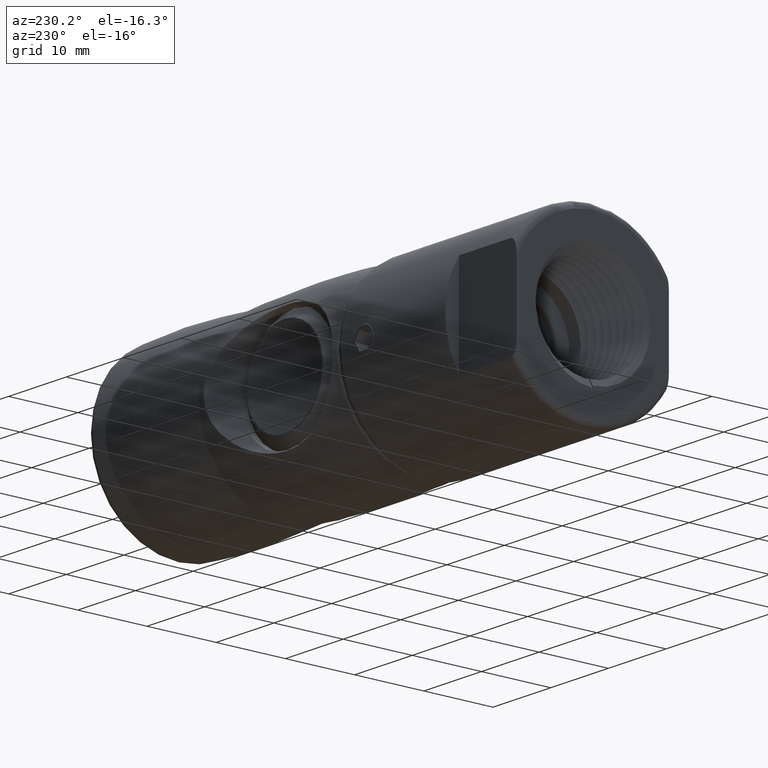
[diagram: clean part render]
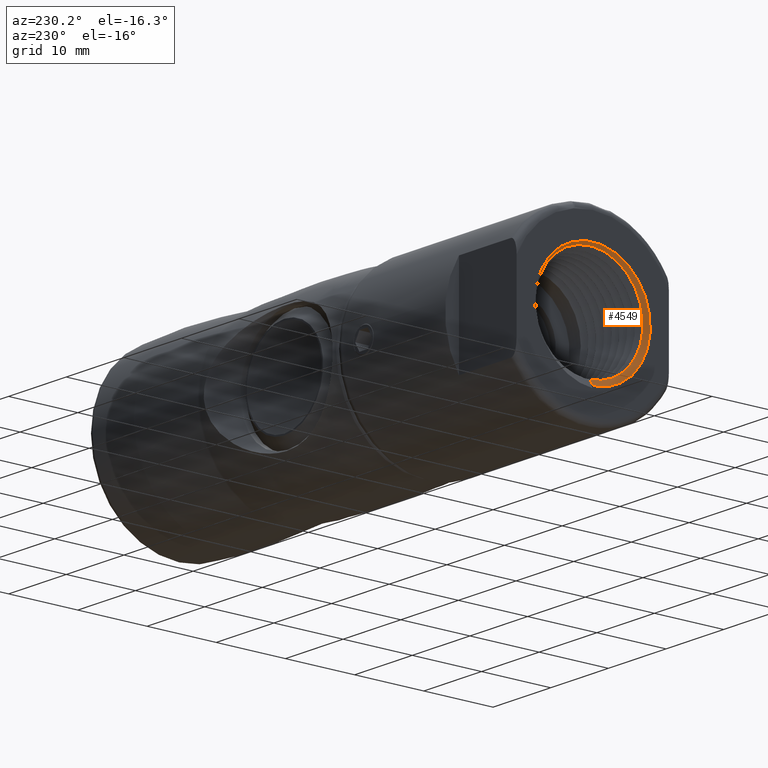
[diagram: same view with one face highlighted and labeled with its STEP entity id]
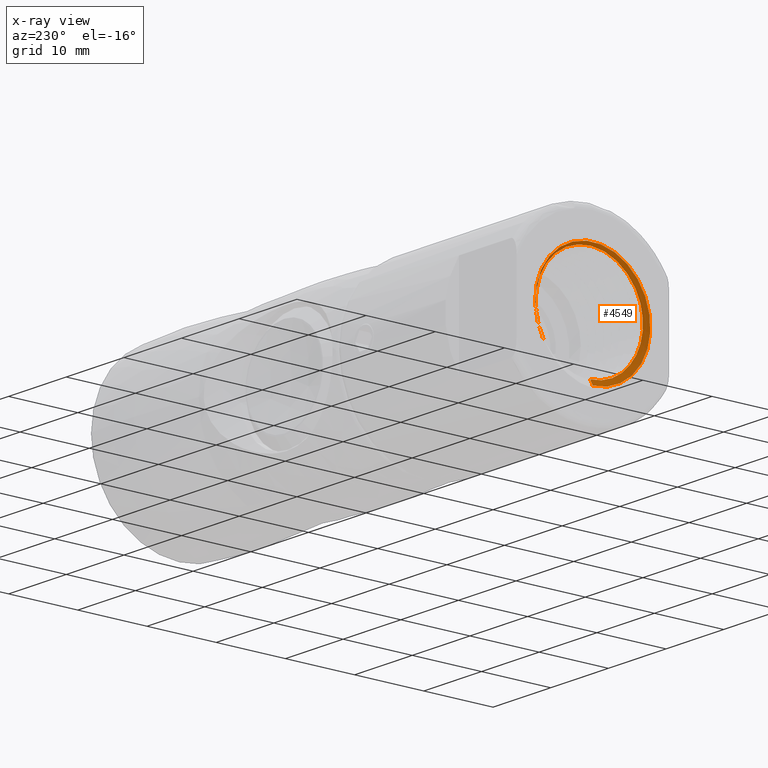
[diagram: x-ray of the same camera — body ghosted, the highlighted face saturated]
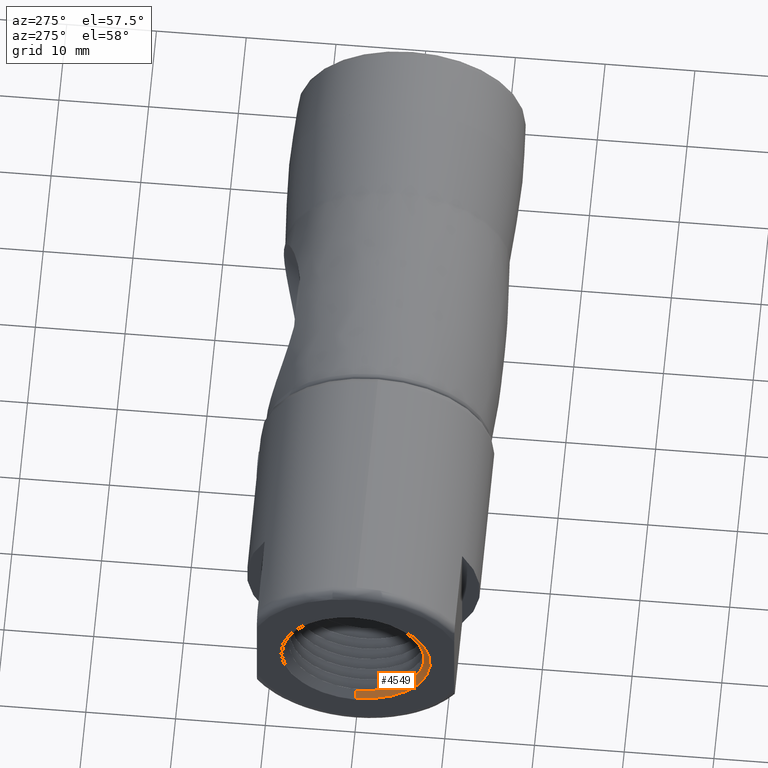
[diagram: same view with one face highlighted and labeled with its STEP entity id]
A machine part, auxiliary view. The second image highlights one B-rep face of the part: STEP entity #4549.
The next image is the same camera in x-ray: the body ghosted, the highlighted face saturated — about 0% of this face is hidden behind the body in this view.
A second angle (auxiliary view) of the same face is appended — the face is thin or edge-on in the first view.
In plain terms, the highlighted conical surface has half-angle 60 deg.
Its self-contained STEP definition (entity closure, byte-faithful):
#271=CONICAL_SURFACE('',#5160,8.32499999999925,1.04719755119661);
#432=B_SPLINE_CURVE_WITH_KNOTS('',3,(#16529,#16530,#16531,#16532,#16533,
#16534,#16535,#16536,#16537,#16538,#16539,#16540,#16541,#16542,#16543,#16544,
#16545,#16546,#16547,#16548,#16549,#16550,#16551,#16552,#16553,#16554,#16555,
#16556,#16557,#16558,#16559,#16560,#16561,#16562),.UNSPECIFIED.,.F.,.F.,
(4,2,2,2,2,2,2,2,2,2,2,2,2,2,2,2,4),(-3.69162760644924,-3.39256319397044,
-3.09960596431941,-2.93412231200765,-2.77306659545551,-2.45831007307439,
-2.29755317516723,-2.14006261281001,-1.83205675106253,-1.67250871242781,
-1.37612860784303,-1.22344855431198,-0.914910751152504,-0.615300474588061,
-0.313536600940725,-0.157591120924952,-1.00000001790335E-6),
 .UNSPECIFIED.);
#616=LINE('',#16526,#802);
#802=VECTOR('',#6435,10.);
#1177=FACE_OUTER_BOUND('',#1471,.T.);
#1471=EDGE_LOOP('',(#4214,#4215,#4216,#4217));
#1760=CIRCLE('',#5110,7.4750000000019);
#1790=CIRCLE('',#5161,8.32499999999925);
#2222=VERTEX_POINT('',#15690);
#2223=VERTEX_POINT('',#15692);
#2278=VERTEX_POINT('',#16525);
#2279=VERTEX_POINT('',#16527);
#2858=EDGE_CURVE('',#2222,#2223,#1760,.T.);
#2935=EDGE_CURVE('',#2278,#2222,#616,.T.);
#2936=EDGE_CURVE('',#2278,#2279,#1790,.T.);
#2937=EDGE_CURVE('',#2279,#2223,#432,.T.);
#4214=ORIENTED_EDGE('',*,*,#2935,.F.);
#4215=ORIENTED_EDGE('',*,*,#2936,.T.);
#4216=ORIENTED_EDGE('',*,*,#2937,.T.);
#4217=ORIENTED_EDGE('',*,*,#2858,.F.);
#4549=ADVANCED_FACE('',(#1177),#271,.F.);
#5110=AXIS2_PLACEMENT_3D('',#15693,#6315,#6316);
#5160=AXIS2_PLACEMENT_3D('',#16524,#6433,#6434);
#5161=AXIS2_PLACEMENT_3D('',#16528,#6436,#6437);
#6315=DIRECTION('center_axis',(-1.,-8.10829853279917E-18,4.14709251126948E-18));
#6316=DIRECTION('ref_axis',(-4.14709251126948E-18,-5.55111512312578E-17,
-1.));
#6433=DIRECTION('center_axis',(-1.,-8.10829853279917E-18,4.14709251126948E-18));
#6434=DIRECTION('ref_axis',(6.95820508622098E-18,-0.386425942628657,0.922320438277042));
#6435=DIRECTION('',(0.499948631483538,-0.013582529507021,0.865948543950464));
#6436=DIRECTION('center_axis',(-1.,-8.10829853279917E-18,4.14709251126948E-18));
#6437=DIRECTION('ref_axis',(-4.14709251126948E-18,-5.55111512312578E-17,
-1.));
#15690=CARTESIAN_POINT('',(-18.8092522711823,-0.0133325607618572,-7.4749881098803));
#15692=CARTESIAN_POINT('',(-18.8092522711823,-5.8102164284924,-4.70287253219832));
#15693=CARTESIAN_POINT('Origin',(-18.8092522711823,-2.31161528361694E-16,
1.18230506595746E-16));
#16524=CARTESIAN_POINT('Origin',(-19.2999999999919,-2.35140657451175E-16,
1.20265682826815E-16));
#16525=CARTESIAN_POINT('',(-19.2999999999919,-2.4153126224192E-15,-8.32499999999925));
#16526=CARTESIAN_POINT('',(-19.2999999999919,-2.4153126224192E-15,-8.32499999999925));
#16527=CARTESIAN_POINT('',(-19.2999999999919,5.93420227036804,-5.83873859787765));
#16528=CARTESIAN_POINT('Origin',(-19.2999999999919,-2.35140657451175E-16,
1.20265682826815E-16));
#16529=CARTESIAN_POINT('Ctrl Pts',(-19.2999999999919,5.93420227036805,-5.83873859787765));
#16530=CARTESIAN_POINT('Ctrl Pts',(-19.2881889136879,6.59976875861149,-5.13312145735482));
#16531=CARTESIAN_POINT('Ctrl Pts',(-19.2755883561606,7.13573391910914,-4.31567707333792));
#16532=CARTESIAN_POINT('Ctrl Pts',(-19.2501803291758,7.89137241032718,-2.5504744810282));
#16533=CARTESIAN_POINT('Ctrl Pts',(-19.2375721826922,8.11162411540846,-1.61892757402717));
#16534=CARTESIAN_POINT('Ctrl Pts',(-19.2186748381145,8.20060681580514,-0.134693974884291));
#16535=CARTESIAN_POINT('Ctrl Pts',(-19.2121198804952,8.18054317738167,0.405642265774004));
#16536=CARTESIAN_POINT('Ctrl Pts',(-19.1983888933099,8.03416904501537,1.4609578991478));
#16537=CARTESIAN_POINT('Ctrl Pts',(-19.1914312557947,7.91153887237701,1.97320697807807));
#16538=CARTESIAN_POINT('Ctrl Pts',(-19.1706078145972,7.40535237617117,3.44081444126632));
#16539=CARTESIAN_POINT('Ctrl Pts',(-19.1566711014137,6.88905264538967,4.33923214745761));
#16540=CARTESIAN_POINT('Ctrl Pts',(-19.1365093193236,5.87651141062565,5.51475727652093));
#16541=CARTESIAN_POINT('Ctrl Pts',(-19.1299878104213,5.49412134797056,5.88070260590462));
#16542=CARTESIAN_POINT('Ctrl Pts',(-19.1163436969054,4.67044320983177,6.52416924746311));
#16543=CARTESIAN_POINT('Ctrl Pts',(-19.1093950409286,4.23277237263709,6.80212155208733));
#16544=CARTESIAN_POINT('Ctrl Pts',(-19.0885546618275,2.86863773151631,7.49236924349984));
#16545=CARTESIAN_POINT('Ctrl Pts',(-19.0745604185698,1.88721031698522,7.7728966255485));
#16546=CARTESIAN_POINT('Ctrl Pts',(-19.0541572710177,0.357615844730641,
7.90845849293073));
#16547=CARTESIAN_POINT('Ctrl Pts',(-19.04751470276,-0.17152773481733,7.90342093633623));
#16548=CARTESIAN_POINT('Ctrl Pts',(-19.0275574998905,-1.66914458342571,
7.73592348447308));
#16549=CARTESIAN_POINT('Ctrl Pts',(-19.0138771073267,-2.61357835444709,
7.44500408924284));
#16550=CARTESIAN_POINT('Ctrl Pts',(-18.9931291631011,-3.92577352742474,
6.75138569371464));
#16551=CARTESIAN_POINT('Ctrl Pts',(-18.9861209099129,-4.34803252545981,
6.47290298885684));
#16552=CARTESIAN_POINT('Ctrl Pts',(-18.965393391555,-5.53358362252175,5.51459433250953));
#16553=CARTESIAN_POINT('Ctrl Pts',(-18.952306099431,-6.19523275558075,4.72315282615378));
#16554=CARTESIAN_POINT('Ctrl Pts',(-18.9238702384127,-7.15430440079594,
2.94736269807896));
#16555=CARTESIAN_POINT('Ctrl Pts',(-18.9095718927815,-7.45222777053434,
1.98893983562639));
#16556=CARTESIAN_POINT('Ctrl Pts',(-18.881901794218,-7.66648299648467,0.00471811750331548));
#16557=CARTESIAN_POINT('Ctrl Pts',(-18.8688133751906,-7.57825149351663,
-1.00479722064703));
#16558=CARTESIAN_POINT('Ctrl Pts',(-18.8469152127456,-7.14407441754718,
-2.46724948619691));
#16559=CARTESIAN_POINT('Ctrl Pts',(-18.839353450712,-6.94492818073754,-2.94885472639525));
#16560=CARTESIAN_POINT('Ctrl Pts',(-18.8241878233049,-6.44796764201521,
-3.86813383625063));
#16561=CARTESIAN_POINT('Ctrl Pts',(-18.8166261076602,-6.15050481483691,
-4.30275972653165));
#16562=CARTESIAN_POINT('Ctrl Pts',(-18.8092522711823,-5.8102164284924,-4.70287253219831));